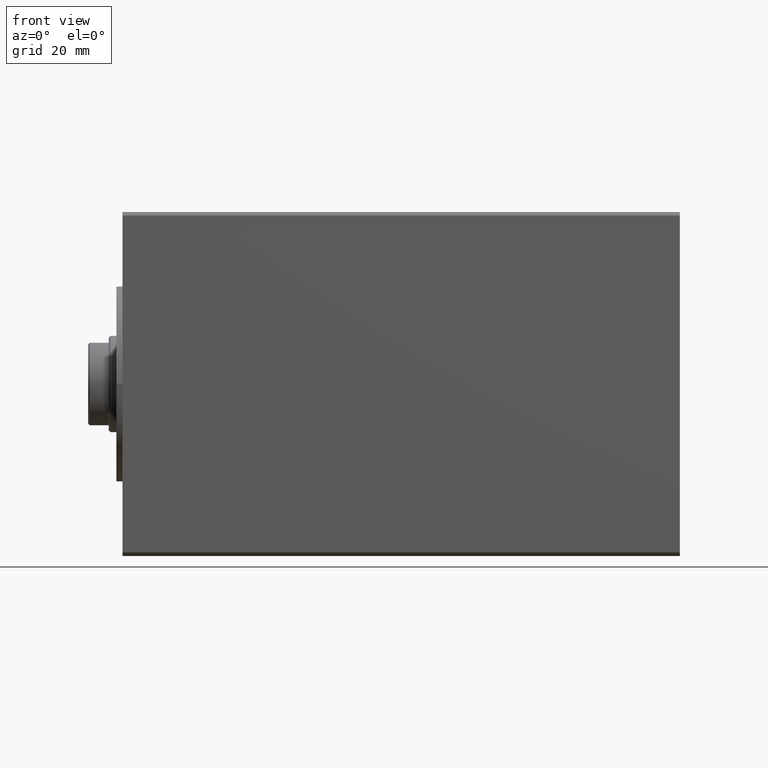
[diagram: clean part render]
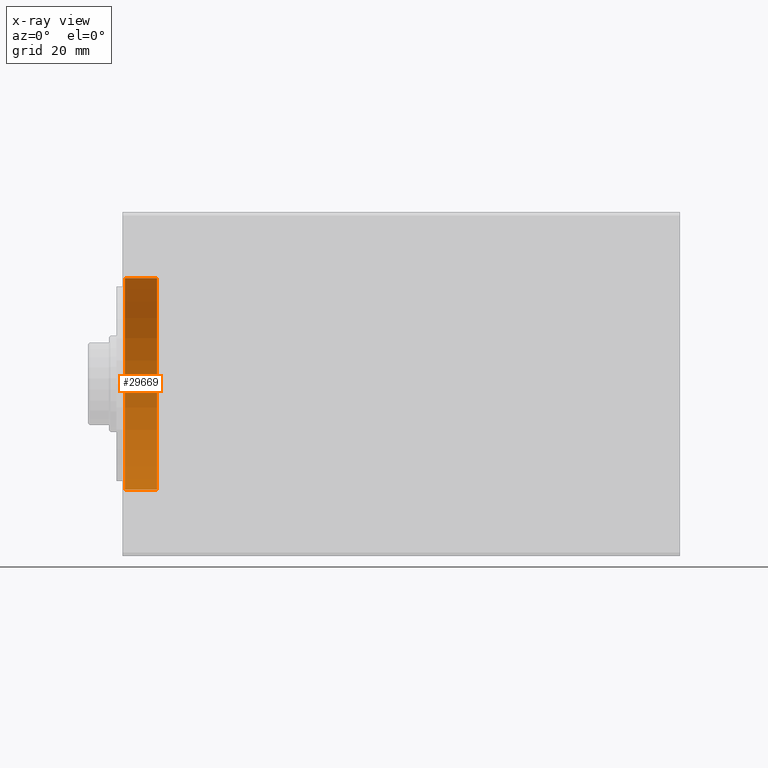
[diagram: x-ray — body ghosted, one internal face saturated and labeled with its STEP entity id]
A machine part, front view, then the same camera in x-ray: the body is ghosted and one INTERNAL B-rep face — a face not visible from any outside direction — is saturated and labeled: STEP entity #29669.
In plain terms, the highlighted cylindrical surface (partial cylindrical patch) has radius 30.75 mm, axis along (-1, -0, -0).
Its self-contained STEP definition (entity closure, byte-faithful):
#330 = VERTEX_POINT ( 'NONE', #17911 ) ;
#1356 = VECTOR ( 'NONE', #21314, 1000.000000000000000 ) ;
#3293 = CIRCLE ( 'NONE', #38086, 30.75000000000000355 ) ;
#5331 = CARTESIAN_POINT ( 'NONE',  ( 10.00000000000000000, 0.000000000000000000, 30.75000000000000355 ) ) ;
#5586 = EDGE_CURVE ( 'NONE', #38108, #330, #3293, .T. ) ;
#5631 = FACE_OUTER_BOUND ( 'NONE', #7631, .T. ) ;
#5850 = DIRECTION ( 'NONE',  ( -1.000000000000000000, -0.000000000000000000, -0.000000000000000000 ) ) ;
#6637 = ORIENTED_EDGE ( 'NONE', *, *, #13787, .F. ) ;
#6954 = EDGE_CURVE ( 'NONE', #17845, #10855, #11146, .T. ) ;
#7631 = EDGE_LOOP ( 'NONE', ( #6637, #36853, #8504, #42534 ) ) ;
#7755 = CARTESIAN_POINT ( 'NONE',  ( 10.00000000000000000, 3.765788907378111328E-15, -30.75000000000000355 ) ) ;
#8504 = ORIENTED_EDGE ( 'NONE', *, *, #42374, .T. ) ;
#8558 = CARTESIAN_POINT ( 'NONE',  ( 10.00000000000000000, 3.765788907378111328E-15, -30.75000000000000355 ) ) ;
#10855 = VERTEX_POINT ( 'NONE', #8558 ) ;
#11146 = CIRCLE ( 'NONE', #43840, 30.75000000000000355 ) ;
#12118 = DIRECTION ( 'NONE',  ( 0.000000000000000000, 0.000000000000000000, 1.000000000000000000 ) ) ;
#12747 = CARTESIAN_POINT ( 'NONE',  ( 10.00000000000000000, 0.000000000000000000, 0.000000000000000000 ) ) ;
#13547 = DIRECTION ( 'NONE',  ( -1.000000000000000000, 0.000000000000000000, 0.000000000000000000 ) ) ;
#13787 = EDGE_CURVE ( 'NONE', #10855, #330, #41344, .T. ) ;
#13992 = CARTESIAN_POINT ( 'NONE',  ( 0.7000000000000234923, 0.000000000000000000, 30.75000000000000355 ) ) ;
#16879 = DIRECTION ( 'NONE',  ( 0.000000000000000000, 0.000000000000000000, -1.000000000000000000 ) ) ;
#17845 = VERTEX_POINT ( 'NONE', #30909 ) ;
#17911 = CARTESIAN_POINT ( 'NONE',  ( 0.7000000000000234923, 3.765788907378111328E-15, -30.75000000000000355 ) ) ;
#17965 = VECTOR ( 'NONE', #36043, 1000.000000000000000 ) ;
#21314 = DIRECTION ( 'NONE',  ( -1.000000000000000000, -0.000000000000000000, -0.000000000000000000 ) ) ;
#22760 = CYLINDRICAL_SURFACE ( 'NONE', #23038, 30.75000000000000355 ) ;
#23005 = DIRECTION ( 'NONE',  ( -1.000000000000000000, 0.000000000000000000, 0.000000000000000000 ) ) ;
#23038 = AXIS2_PLACEMENT_3D ( 'NONE', #12747, #5850, #36980 ) ;
#23347 = CARTESIAN_POINT ( 'NONE',  ( 0.7000000000000234923, 0.000000000000000000, 0.000000000000000000 ) ) ;
#29669 = ADVANCED_FACE ( 'NONE', ( #5631 ), #22760, .F. ) ;
#30909 = CARTESIAN_POINT ( 'NONE',  ( 10.00000000000000000, 0.000000000000000000, 30.75000000000000355 ) ) ;
#36043 = DIRECTION ( 'NONE',  ( -1.000000000000000000, -0.000000000000000000, -0.000000000000000000 ) ) ;
#36853 = ORIENTED_EDGE ( 'NONE', *, *, #6954, .F. ) ;
#36980 = DIRECTION ( 'NONE',  ( 0.000000000000000000, 0.000000000000000000, 1.000000000000000000 ) ) ;
#38086 = AXIS2_PLACEMENT_3D ( 'NONE', #23347, #13547, #16879 ) ;
#38108 = VERTEX_POINT ( 'NONE', #13992 ) ;
#41344 = LINE ( 'NONE', #7755, #1356 ) ;
#42374 = EDGE_CURVE ( 'NONE', #17845, #38108, #42711, .T. ) ;
#42534 = ORIENTED_EDGE ( 'NONE', *, *, #5586, .T. ) ;
#42711 = LINE ( 'NONE', #5331, #17965 ) ;
#42809 = CARTESIAN_POINT ( 'NONE',  ( 10.00000000000000000, 0.000000000000000000, 0.000000000000000000 ) ) ;
#43840 = AXIS2_PLACEMENT_3D ( 'NONE', #42809, #23005, #12118 ) ;